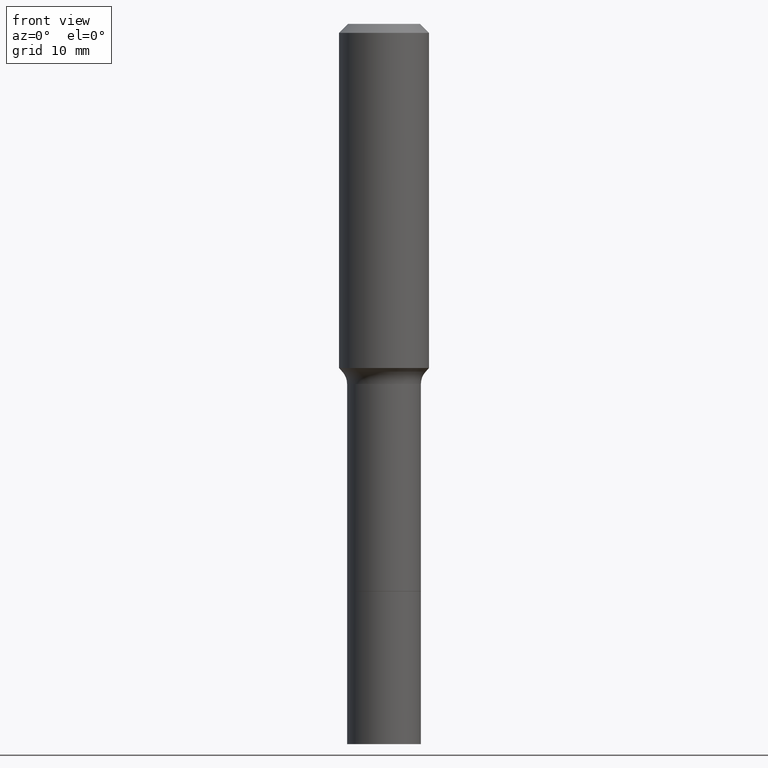
[diagram: clean part render]
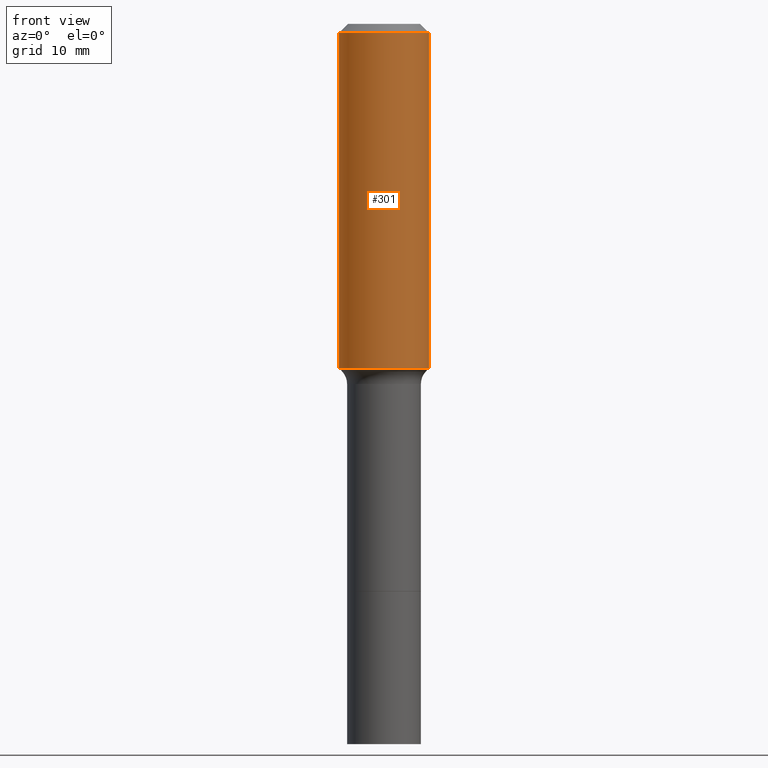
[diagram: same view with one face highlighted and labeled with its STEP entity id]
A machine part, front view. The second image highlights one B-rep face of the part: STEP entity #301.
In plain terms, the highlighted cylindrical surface (partial cylindrical patch) has radius 5 mm, axis along (-0, 0, 1).
Its self-contained STEP definition (entity closure, byte-faithful):
#5 = ORIENTED_EDGE ( 'NONE', *, *, #182, .F. ) ;
#7 = AXIS2_PLACEMENT_3D ( 'NONE', #314, #38, #199 ) ;
#32 = CIRCLE ( 'NONE', #241, 0.1968500000000001915 ) ;
#38 = DIRECTION ( 'NONE',  ( -2.445468806185136597E-29, 3.491481338843145583E-15, 1.000000000000000000 ) ) ;
#50 = CARTESIAN_POINT ( 'NONE',  ( 0.000000000000000000, 0.000000000000000000, 0.000000000000000000 ) ) ;
#60 = ORIENTED_EDGE ( 'NONE', *, *, #152, .F. ) ;
#64 = VERTEX_POINT ( 'NONE', #323 ) ;
#68 = DIRECTION ( 'NONE',  ( -2.445468806185136877E-29, 3.491481338843145188E-15, 1.000000000000000000 ) ) ;
#90 = CYLINDRICAL_SURFACE ( 'NONE', #257, 0.1968500000000001082 ) ;
#135 = DIRECTION ( 'NONE',  ( -2.445468806185136597E-29, 3.491481338843145583E-15, 1.000000000000000000 ) ) ;
#152 = EDGE_CURVE ( 'NONE', #254, #64, #242, .T. ) ;
#160 = CIRCLE ( 'NONE', #7, 0.1968500000000000250 ) ;
#164 = LINE ( 'NONE', #215, #501 ) ;
#167 = EDGE_LOOP ( 'NONE', ( #60, #305, #191, #5 ) ) ;
#182 = EDGE_CURVE ( 'NONE', #64, #426, #160, .T. ) ;
#191 = ORIENTED_EDGE ( 'NONE', *, *, #270, .T. ) ;
#199 = DIRECTION ( 'NONE',  ( 1.000000000000000000, -6.982962677686265922E-15, 0.000000000000000000 ) ) ;
#215 = CARTESIAN_POINT ( 'NONE',  ( 0.1968500000000001082, -1.374596203102542397E-15, 9.598753983154305062E-30 ) ) ;
#241 = AXIS2_PLACEMENT_3D ( 'NONE', #454, #135, #422 ) ;
#242 = LINE ( 'NONE', #477, #342 ) ;
#250 = DIRECTION ( 'NONE',  ( 1.000000000000000000, -6.982962677686266711E-15, 4.876176775795935793E-29 ) ) ;
#254 = VERTEX_POINT ( 'NONE', #515 ) ;
#257 = AXIS2_PLACEMENT_3D ( 'NONE', #50, #292, #250 ) ;
#270 = EDGE_CURVE ( 'NONE', #404, #426, #164, .T. ) ;
#284 = DIRECTION ( 'NONE',  ( -2.445468806185136877E-29, 3.491481338843145188E-15, 1.000000000000000000 ) ) ;
#292 = DIRECTION ( 'NONE',  ( -2.445468806185136597E-29, 3.491481338843145583E-15, 1.000000000000000000 ) ) ;
#301 = ADVANCED_FACE ( 'NONE', ( #417 ), #90, .T. ) ;
#305 = ORIENTED_EDGE ( 'NONE', *, *, #459, .T. ) ;
#314 = CARTESIAN_POINT ( 'NONE',  ( 9.627810689950950651E-31, -1.374596203102556054E-16, -0.03937000000000027977 ) ) ;
#323 = CARTESIAN_POINT ( 'NONE',  ( -0.1968500000000000250, -1.297491296500151018E-15, -0.03937000000000027977 ) ) ;
#334 = CARTESIAN_POINT ( 'NONE',  ( 0.1968500000000000250, -1.512055823412797189E-15, -0.03937000000000027977 ) ) ;
#342 = VECTOR ( 'NONE', #68, 39.37007874015748143 ) ;
#404 = VERTEX_POINT ( 'NONE', #498 ) ;
#417 = FACE_OUTER_BOUND ( 'NONE', #167, .T. ) ;
#422 = DIRECTION ( 'NONE',  ( 1.000000000000000000, -6.982962677686266711E-15, 0.000000000000000000 ) ) ;
#426 = VERTEX_POINT ( 'NONE', #334 ) ;
#454 = CARTESIAN_POINT ( 'NONE',  ( 3.680605871854049505E-29, -5.254929723377562819E-15, -1.505071691180429383 ) ) ;
#459 = EDGE_CURVE ( 'NONE', #254, #404, #32, .T. ) ;
#477 = CARTESIAN_POINT ( 'NONE',  ( -0.1968500000000001082, 1.398703375343757985E-15, -9.682923725166787881E-30 ) ) ;
#498 = CARTESIAN_POINT ( 'NONE',  ( 0.1968500000000001915, -6.629525926480106005E-15, -1.505071691180429383 ) ) ;
#501 = VECTOR ( 'NONE', #284, 39.37007874015748143 ) ;
#515 = CARTESIAN_POINT ( 'NONE',  ( -0.1968500000000001915, -3.856226348033804243E-15, -1.505071691180429383 ) ) ;